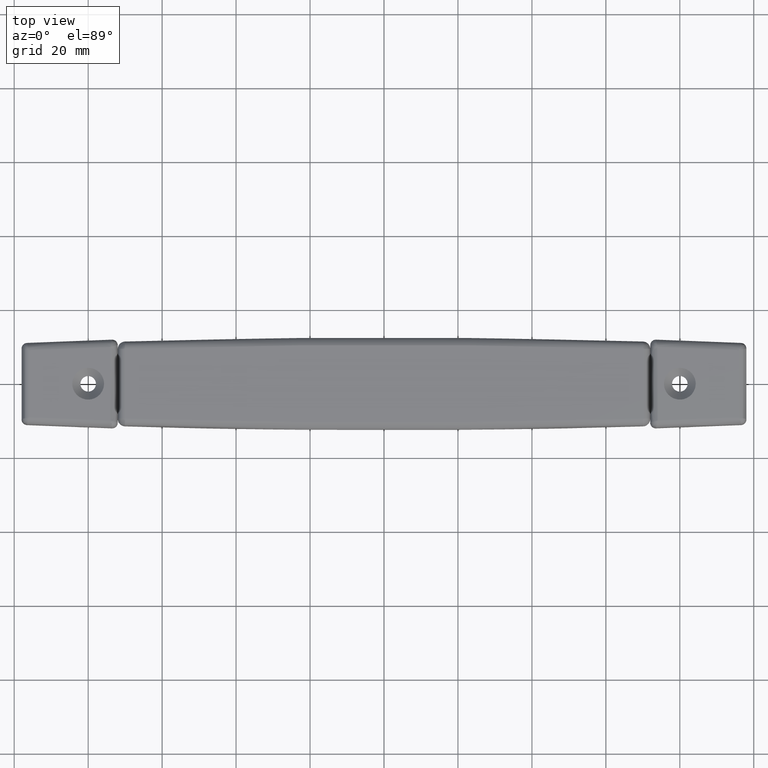
[diagram: clean part render]
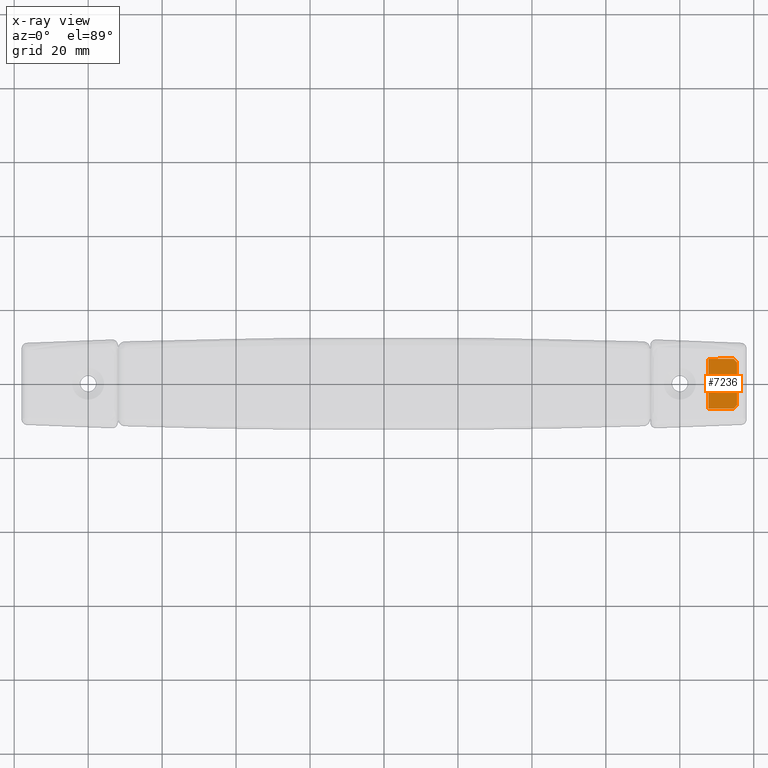
[diagram: x-ray — body ghosted, one internal face saturated and labeled with its STEP entity id]
A machine part, top view, then the same camera in x-ray: the body is ghosted and one INTERNAL B-rep face — a face not visible from any outside direction — is saturated and labeled: STEP entity #7236.
In plain terms, the highlighted face is a freeform B-spline surface patch.
Its self-contained STEP definition (entity closure, byte-faithful):
#6816=CARTESIAN_POINT('',(89.424749370947794,2.249999999999975,4.611501258883961));
#6817=VERTEX_POINT('',#6816);
#6842=CARTESIAN_POINT('',(89.424749370947794,-2.249999999999975,4.611501258883961));
#6843=VERTEX_POINT('',#6842);
#6849=CARTESIAN_POINT('',(89.424749370947794,2.249999999999975,4.611501258883961));
#6850=CARTESIAN_POINT('',(89.701688071148027,2.250306882371097,4.711822278721598));
#6851=CARTESIAN_POINT('',(90.203400236798643,2.143651807315033,4.893567466687732));
#6852=CARTESIAN_POINT('',(90.785379247998733,1.762215971483444,5.104389312408419));
#6853=CARTESIAN_POINT('',(91.160071349695187,1.322356675449638,5.240121493357020));
#6854=CARTESIAN_POINT('',(91.411997806921278,0.835596609503549,5.331381830373041));
#6855=CARTESIAN_POINT('',(91.536601850646605,0.332687021568266,5.376519634274547));
#6856=CARTESIAN_POINT('',(91.548516592658501,-0.185050644556587,5.380835748522458));
#6857=CARTESIAN_POINT('',(91.456181904324595,-0.713084133883459,5.347387515778943));
#6858=CARTESIAN_POINT('',(91.239212303471504,-1.200880343175276,5.268790296915167));
#6859=CARTESIAN_POINT('',(90.842152761985815,-1.715877201649276,5.124955512867042));
#6860=CARTESIAN_POINT('',(90.255352196448200,-2.132706848520937,4.912387059510783));
#6861=CARTESIAN_POINT('',(89.701688773917795,-2.250305264500663,4.711822533298764));
#6862=CARTESIAN_POINT('',(89.424749370947794,-2.249999999999975,4.611501258883961));
#6863=B_SPLINE_CURVE_WITH_KNOTS('',3,(#6849,#6850,#6851,#6852,#6853,#6854,#6855,#6856,#6857,#6858,#6859,#6860,#6861,#6862),.UNSPECIFIED.,.F.,.U.,(4,1,1,1,1,1,1,1,1,1,1,4),(0.000000919676933,0.883567299294080,1.601519622916173,2.153786357800664,2.650814672225071,3.258305065943561,3.699964559148001,4.197045388565858,4.859759105106404,5.301574232754909,6.185196739533636,7.068760850560148),.UNSPECIFIED.);
#6864=EDGE_CURVE('',#6817,#6843,#6863,.T.);
#6874=CARTESIAN_POINT('',(87.736684755174593,-2.249999999999975,3.999999999999945));
#6875=VERTEX_POINT('',#6874);
#6876=CARTESIAN_POINT('',(87.736684755174593,-2.249999999999975,3.999999999999945));
#6877=CARTESIAN_POINT('',(89.424749370947794,-2.249999999999975,4.611501258883961));
#6878=QUASI_UNIFORM_CURVE('',1,(#6876,#6877),.UNSPECIFIED.,.F.,.U.);
#6879=EDGE_CURVE('',#6875,#6843,#6878,.T.);
#6924=CARTESIAN_POINT('',(87.736684755174693,2.249999999999975,3.999999999999950));
#6925=VERTEX_POINT('',#6924);
#6926=CARTESIAN_POINT('',(87.736684755174693,2.249999999999975,3.999999999999950));
#6927=CARTESIAN_POINT('',(89.424749370947794,2.249999999999975,4.611501258883961));
#6928=QUASI_UNIFORM_CURVE('',1,(#6926,#6927),.UNSPECIFIED.,.F.,.U.);
#6929=EDGE_CURVE('',#6925,#6817,#6928,.T.);
#6978=CARTESIAN_POINT('',(94.548901386682601,-6.750000000000000,6.467724876781301));
#6979=VERTEX_POINT('',#6978);
#6980=CARTESIAN_POINT('',(95.489112765716797,-5.749999999999530,6.808316366303821));
#6981=VERTEX_POINT('',#6980);
#6982=CARTESIAN_POINT('',(94.548901386682601,-6.750000000000000,6.467724876781301));
#6983=CARTESIAN_POINT('',(95.489112765716797,-5.749999999999530,6.808316366303821));
#6984=QUASI_UNIFORM_CURVE('',1,(#6982,#6983),.UNSPECIFIED.,.F.,.U.);
#6985=EDGE_CURVE('',#6979,#6981,#6984,.T.);
#7014=CARTESIAN_POINT('',(95.489112765716499,5.750000000000280,6.808316366303740));
#7015=VERTEX_POINT('',#7014);
#7016=CARTESIAN_POINT('',(94.548901386682701,6.750000000000000,6.467724876781321));
#7017=VERTEX_POINT('',#7016);
#7018=CARTESIAN_POINT('',(95.489112765716499,5.750000000000280,6.808316366303740));
#7019=CARTESIAN_POINT('',(94.548901386682701,6.750000000000000,6.467724876781321));
#7020=QUASI_UNIFORM_CURVE('',1,(#7018,#7019),.UNSPECIFIED.,.F.,.U.);
#7021=EDGE_CURVE('',#7015,#7017,#7020,.T.);
#7058=CARTESIAN_POINT('',(87.736684755174593,-6.750000000000000,3.999999999999945));
#7059=VERTEX_POINT('',#7058);
#7060=CARTESIAN_POINT('',(87.736684755174593,-6.750000000000000,3.999999999999945));
#7061=CARTESIAN_POINT('',(94.548901386682601,-6.750000000000000,6.467724876781301));
#7062=QUASI_UNIFORM_CURVE('',1,(#7060,#7061),.UNSPECIFIED.,.F.,.U.);
#7063=EDGE_CURVE('',#7059,#6979,#7062,.T.);
#7092=CARTESIAN_POINT('',(87.736684755174593,6.750000000000000,3.999999999999945));
#7093=VERTEX_POINT('',#7092);
#7094=CARTESIAN_POINT('',(87.736684755174593,6.750000000000000,3.999999999999945));
#7095=CARTESIAN_POINT('',(94.548901386682701,6.750000000000000,6.467724876781321));
#7096=QUASI_UNIFORM_CURVE('',1,(#7094,#7095),.UNSPECIFIED.,.F.,.U.);
#7097=EDGE_CURVE('',#7093,#7017,#7096,.T.);
#7202=CARTESIAN_POINT('',(95.489112765716499,5.750000000000280,6.808316366303740));
#7203=CARTESIAN_POINT('',(95.489112765716797,-5.749999999999530,6.808316366303821));
#7204=QUASI_UNIFORM_CURVE('',1,(#7202,#7203),.UNSPECIFIED.,.F.,.U.);
#7205=EDGE_CURVE('',#7015,#6981,#7204,.T.);
#7211=CARTESIAN_POINT('',(95.876346529817653,-7.424324973834381,6.948591763357669));
#7212=CARTESIAN_POINT('',(87.349450783137399,-7.424324973834381,3.859724527621210));
#7213=CARTESIAN_POINT('',(95.876346529817653,7.424325335932597,6.948591763357669));
#7214=CARTESIAN_POINT('',(87.349450783137399,7.424325335932597,3.859724527621210));
#7215=B_SPLINE_SURFACE_WITH_KNOTS('',1,1,((#7211,#7213),(#7212,#7214)),.UNSPECIFIED.,.F.,.F.,.U.,(2,2),(2,2),(0.0,9.069126301621340),(0.0,14.848650309766979),.UNSPECIFIED.);
#7216=CARTESIAN_POINT('',(87.736684755174593,6.750000000000000,3.999999999999945));
#7217=CARTESIAN_POINT('',(87.736684755174693,2.249999999999975,3.999999999999950));
#7218=QUASI_UNIFORM_CURVE('',1,(#7216,#7217),.UNSPECIFIED.,.F.,.U.);
#7219=EDGE_CURVE('',#7093,#6925,#7218,.T.);
#7220=ORIENTED_EDGE('',*,*,#7219,.T.);
#7221=ORIENTED_EDGE('',*,*,#6929,.T.);
#7222=ORIENTED_EDGE('',*,*,#6864,.T.);
#7223=ORIENTED_EDGE('',*,*,#6879,.F.);
#7224=CARTESIAN_POINT('',(87.736684755174593,-2.249999999999975,3.999999999999945));
#7225=CARTESIAN_POINT('',(87.736684755174593,-6.750000000000000,3.999999999999945));
#7226=QUASI_UNIFORM_CURVE('',1,(#7224,#7225),.UNSPECIFIED.,.F.,.U.);
#7227=EDGE_CURVE('',#6875,#7059,#7226,.T.);
#7228=ORIENTED_EDGE('',*,*,#7227,.T.);
#7229=ORIENTED_EDGE('',*,*,#7063,.T.);
#7230=ORIENTED_EDGE('',*,*,#6985,.T.);
#7231=ORIENTED_EDGE('',*,*,#7205,.F.);
#7232=ORIENTED_EDGE('',*,*,#7021,.T.);
#7233=ORIENTED_EDGE('',*,*,#7097,.F.);
#7234=EDGE_LOOP('',(#7220,#7221,#7222,#7223,#7228,#7229,#7230,#7231,#7232,#7233));
#7235=FACE_OUTER_BOUND('',#7234,.T.);
#7236=ADVANCED_FACE('',(#7235),#7215,.F.);